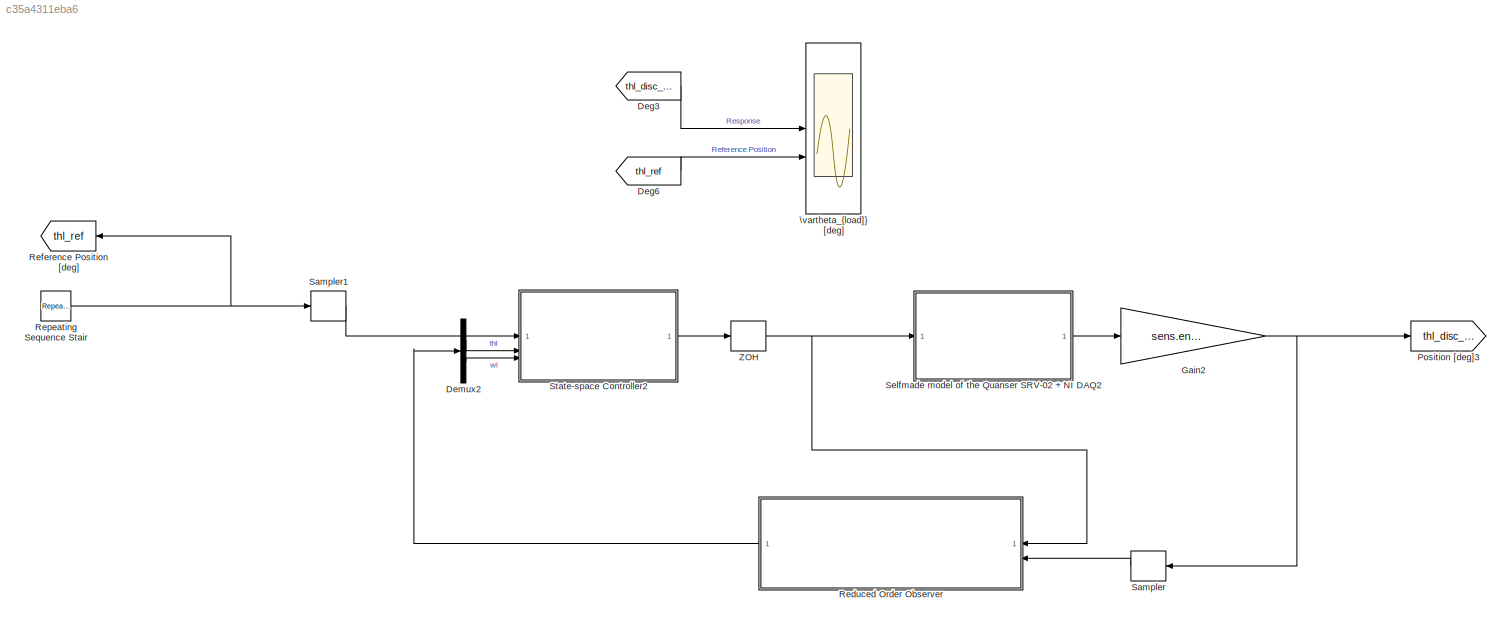
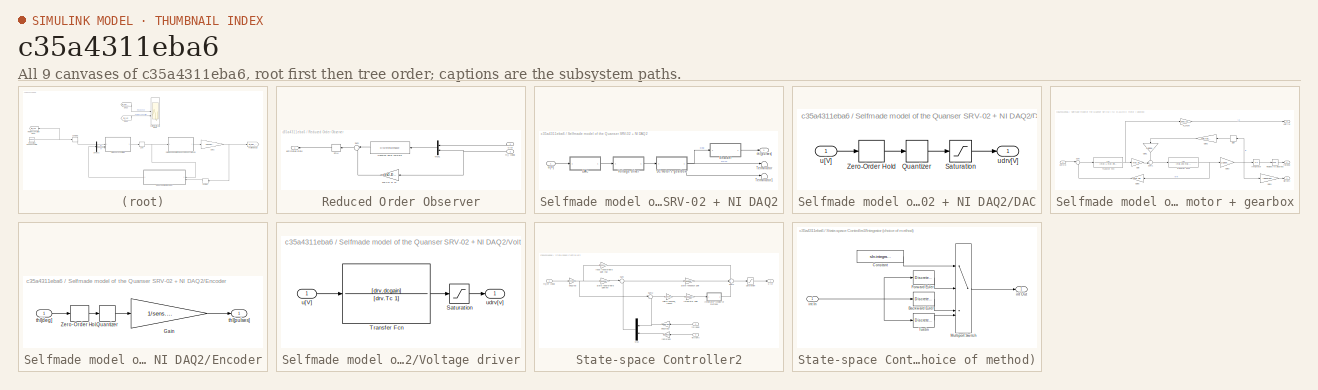
[diagram: thumbnail index - all 9 canvases of the model, root first then tree order]
MODEL slx_c35a4311eba6
KIND model
CONFIG AbsTol = auto
CONFIG EnableMultiTasking = off
CONFIG FixedStep = sIn.step_size
CONFIG MaxStep = auto
CONFIG MinStep = auto
CONFIG RelTol = auto
CONFIG SampleTimeConstraint = Unconstrained
CONFIG SolverName = FixedStepAuto
CONFIG StartTime = 0.0
CONFIG StopTime = sIn.simulation_time
BLOCK [From] Deg3
  GotoTag = thl_disc_rob
BLOCK [From] Deg6
  GotoTag = thl_ref
BLOCK [Demux] Demux2
  Outputs = 2
BLOCK [Gain] Gain2
  Gain = sens.enc.pulse2deg
BLOCK [Goto] Position [deg]3
  GotoTag = thl_disc_rob
BLOCK [SubSystem] Reduced Order Observer
BLOCK [Gain] Reduced Order Observer/2nd Col of J0
  Gain = obsD.J0(:,2)
BLOCK [Mux] Reduced Order Observer/Mux1
  DisplayOption = bar
  Inputs = 2
BLOCK [DiscreteStateSpace] Reduced Order Observer/Observer Euler Forward
  A = obsD.Phi0
  B = obsD.Gamma0
  C = obsD.H0
  D = [obsD.J0(:,1), zeros(2,1)]
  SampleTime = sIn.Ts
BLOCK [Sum] Reduced Order Observer/Sum
  Inputs = |++
BLOCK [ZeroOrderHold] Reduced Order Observer/ZOH
  SampleTime = sIn.Ts
BLOCK [Outport] Reduced Order Observer/estimated state
BLOCK [Inport] Reduced Order Observer/th_l [deg]
  Port = 2
BLOCK [Inport] Reduced Order Observer/u [V]
BLOCK [Goto] Reference Position [deg]
  GotoTag = thl_ref
  NameLocation = top
BLOCK [Reference] Repeating Sequence Stair  REF=simulink/Sources/Repeating
Sequence
Stair
  SourceBlock = simulink/Sources/Repeating\nSequence\nStair
  SourceType = Repeating Sequence Stair
BLOCK [ZeroOrderHold] Sampler
  SampleTime = sIn.Ts
BLOCK [ZeroOrderHold] Sampler1
  SampleTime = sIn.Ts
BLOCK [SubSystem] Selfmade model of the Quanser SRV-02 + NI DAQ2
BLOCK [SubSystem] Selfmade model of the Quanser SRV-02 + NI DAQ2/DAC
BLOCK [Quantizer] Selfmade model of the Quanser SRV-02 + NI DAQ2/DAC/Quantizer
  QuantizationInterval = daq.dac.q
BLOCK [Saturate] Selfmade model of the Quanser SRV-02 + NI DAQ2/DAC/Saturation
  LowerLimit = -10
  UpperLimit = 10
BLOCK [ZeroOrderHold] Selfmade model of the Quanser SRV-02 + NI DAQ2/DAC/Zero-Order Hold
  SampleTime = 1e-3
BLOCK [Inport] Selfmade model of the Quanser SRV-02 + NI DAQ2/DAC/u[V]
BLOCK [Outport] Selfmade model of the Quanser SRV-02 + NI DAQ2/DAC/udrv[V]
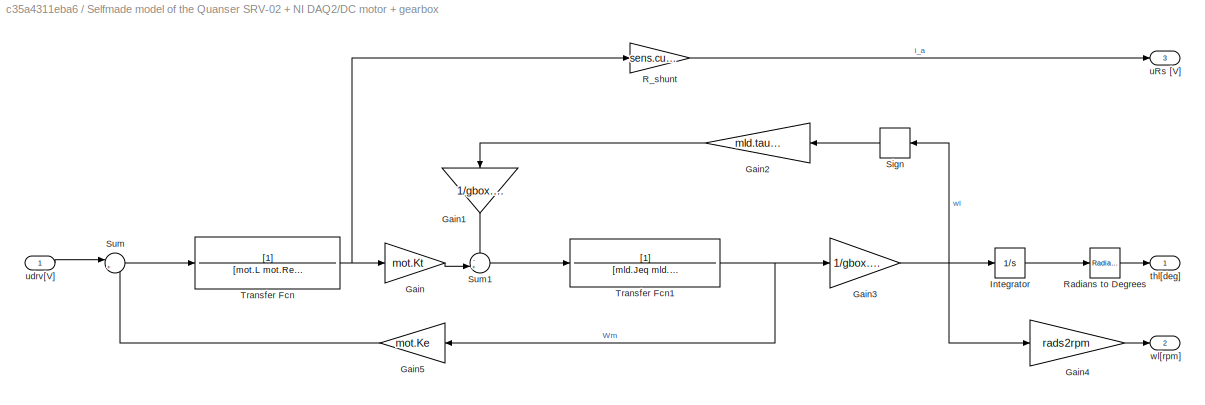
BLOCK [SubSystem] Selfmade model of the Quanser SRV-02 + NI DAQ2/DC motor + gearbox
BLOCK [Gain] Selfmade model of the Quanser SRV-02 + NI DAQ2/DC motor + gearbox/Gain
  Gain = mot.Kt
BLOCK [Gain] Selfmade model of the Quanser SRV-02 + NI DAQ2/DC motor + gearbox/Gain1
  Gain = 1/gbox.N1
  NameLocation = left
BLOCK [Gain] Selfmade model of the Quanser SRV-02 + NI DAQ2/DC motor + gearbox/Gain2
  Gain = mld.tausf
  NameLocation = top
BLOCK [Gain] Selfmade model of the Quanser SRV-02 + NI DAQ2/DC motor + gearbox/Gain3
  Gain = 1/gbox.N1
BLOCK [Gain] Selfmade model of the Quanser SRV-02 + NI DAQ2/DC motor + gearbox/Gain4
  Gain = rads2rpm
BLOCK [Gain] Selfmade model of the Quanser SRV-02 + NI DAQ2/DC motor + gearbox/Gain5
  Gain = mot.Ke
  NameLocation = top
BLOCK [Integrator] Selfmade model of the Quanser SRV-02 + NI DAQ2/DC motor + gearbox/Integrator
BLOCK [Gain] Selfmade model of the Quanser SRV-02 + NI DAQ2/DC motor + gearbox/R_shunt
  Gain = sens.curr.Rs
BLOCK [Reference] Selfmade model of the Quanser SRV-02 + NI DAQ2/DC motor + gearbox/Radians to Degrees  REF=simulink_extras/Transformations/Radians
to Degrees
  SourceBlock = simulink_extras/Transformations/Radians\nto Degrees
  SourceType = RadiansToDegrees
BLOCK [Signum] Selfmade model of the Quanser SRV-02 + NI DAQ2/DC motor + gearbox/Sign
  NameLocation = top
  ZeroCross = off
BLOCK [Sum] Selfmade model of the Quanser SRV-02 + NI DAQ2/DC motor + gearbox/Sum
  Inputs = |+-
BLOCK [Sum] Selfmade model of the Quanser SRV-02 + NI DAQ2/DC motor + gearbox/Sum1
  Inputs = -+|
BLOCK [TransferFcn] Selfmade model of the Quanser SRV-02 + NI DAQ2/DC motor + gearbox/Transfer Fcn
  Denominator = [mot.L mot.Req]
BLOCK [TransferFcn] Selfmade model of the Quanser SRV-02 + NI DAQ2/DC motor + gearbox/Transfer Fcn1
  Denominator = [mld.Jeq mld.Beq]
BLOCK [Outport] Selfmade model of the Quanser SRV-02 + NI DAQ2/DC motor + gearbox/thl[deg]
BLOCK [Outport] Selfmade model of the Quanser SRV-02 + NI DAQ2/DC motor + gearbox/uRs [V]
  Port = 3
BLOCK [Inport] Selfmade model of the Quanser SRV-02 + NI DAQ2/DC motor + gearbox/udrv[V]
BLOCK [Outport] Selfmade model of the Quanser SRV-02 + NI DAQ2/DC motor + gearbox/wl[rpm]
  Port = 2
BLOCK [SubSystem] Selfmade model of the Quanser SRV-02 + NI DAQ2/Encoder
  NameLocation = top
BLOCK [Gain] Selfmade model of the Quanser SRV-02 + NI DAQ2/Encoder/Gain
  Gain = 1/sens.enc.pulse2deg
BLOCK [Quantizer] Selfmade model of the Quanser SRV-02 + NI DAQ2/Encoder/Quantizer
  QuantizationInterval = sens.enc.pulse2deg
BLOCK [ZeroOrderHold] Selfmade model of the Quanser SRV-02 + NI DAQ2/Encoder/Zero-Order Hold
  SampleTime = 1e-3
BLOCK [Inport] Selfmade model of the Quanser SRV-02 + NI DAQ2/Encoder/thl[deg]
BLOCK [Outport] Selfmade model of the Quanser SRV-02 + NI DAQ2/Encoder/thl[pulses]
BLOCK [Terminator] Selfmade model of the Quanser SRV-02 + NI DAQ2/Terminator
BLOCK [Terminator] Selfmade model of the Quanser SRV-02 + NI DAQ2/Terminator1
BLOCK [SubSystem] Selfmade model of the Quanser SRV-02 + NI DAQ2/Voltage driver
BLOCK [Saturate] Selfmade model of the Quanser SRV-02 + NI DAQ2/Voltage driver/Saturation
  LowerLimit = -12
  UpperLimit = 12
BLOCK [TransferFcn] Selfmade model of the Quanser SRV-02 + NI DAQ2/Voltage driver/Transfer Fcn
  Denominator = [drv.Tc 1]
  Numerator = [drv.dcgain]
BLOCK [Inport] Selfmade model of the Quanser SRV-02 + NI DAQ2/Voltage driver/u[V]
BLOCK [Outport] Selfmade model of the Quanser SRV-02 + NI DAQ2/Voltage driver/udrv[v]
BLOCK [Outport] Selfmade model of the Quanser SRV-02 + NI DAQ2/thl[pulses]
BLOCK [Inport] Selfmade model of the Quanser SRV-02 + NI DAQ2/u[V]
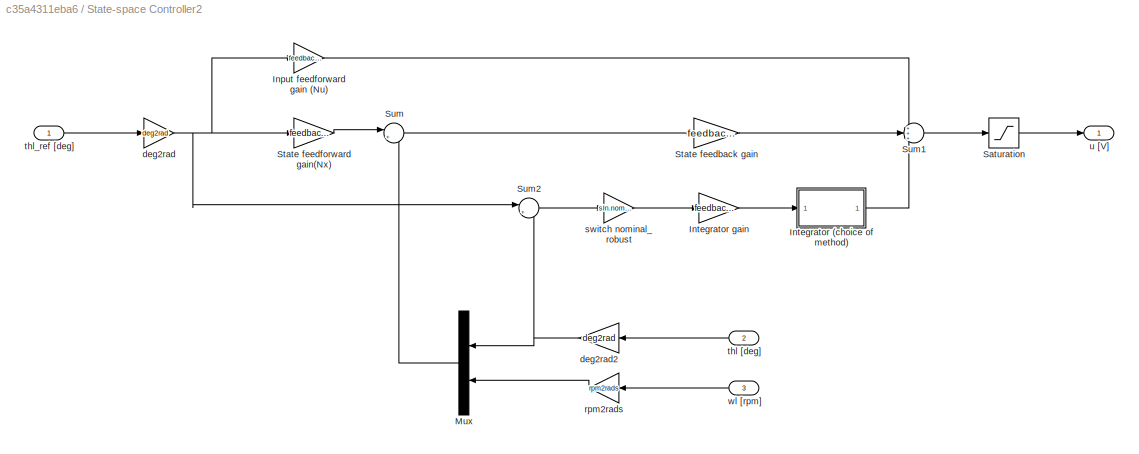
BLOCK [SubSystem] State-space Controller2
BLOCK [Gain] State-space Controller2/Input feedforward gain (Nu)
  Gain = feedback.Nu
BLOCK [SubSystem] State-space Controller2/Integrator (choice of method)
BLOCK [DiscreteIntegrator] State-space Controller2/Integrator (choice of method)/Backward Euler
  ICPrevOutput = DiscIntNeverNeededParam
  ICPrevScaledInput = DiscIntNeverNeededParam
  InitialConditionSetting = Auto
  IntegratorMethod = Integration: Backward Euler
  SampleTime = sIn.Ts
BLOCK [Constant] State-space Controller2/Integrator (choice of method)/Constant
  Value = sIn.integrationMethod
BLOCK [DiscreteIntegrator] State-space Controller2/Integrator (choice of method)/Forward Euler
  ICPrevOutput = DiscIntNeverNeededParam
  ICPrevScaledInput = DiscIntNeverNeededParam
  InitialConditionSetting = Auto
  SampleTime = sIn.Ts
BLOCK [MultiPortSwitch] State-space Controller2/Integrator (choice of method)/Multiport Switch
  InputSameDT = off
  SaturateOnIntegerOverflow = off
BLOCK [DiscreteIntegrator] State-space Controller2/Integrator (choice of method)/Tustin
  ICPrevOutput = DiscIntNeverNeededParam
  ICPrevScaledInput = DiscIntNeverNeededParam
  InitialConditionSetting = Auto
  IntegratorMethod = Integration: Trapezoidal
  SampleTime = sIn.Ts
BLOCK [Inport] State-space Controller2/Integrator (choice of method)/int In
BLOCK [Outport] State-space Controller2/Integrator (choice of method)/int Out
BLOCK [Gain] State-space Controller2/Integrator gain
  Gain = feedback.robustKi
BLOCK [Mux] State-space Controller2/Mux
  DisplayOption = bar
  Inputs = 2
  NameLocation = top
BLOCK [Saturate] State-space Controller2/Saturation
  LowerLimit = -10
  UpperLimit = 10
BLOCK [Gain] State-space Controller2/State feedback gain
  Gain = feedback.K
  Multiplication = Matrix(K*u)
BLOCK [Gain] State-space Controller2/State feedforward gain(Nx)
  Gain = feedback.Nx
BLOCK [Sum] State-space Controller2/Sum
  Inputs = |+-
BLOCK [Sum] State-space Controller2/Sum1
  Inputs = +++
BLOCK [Sum] State-space Controller2/Sum2
  Inputs = |+-
BLOCK [Gain] State-space Controller2/deg2rad
  Gain = deg2rad
BLOCK [Gain] State-space Controller2/deg2rad2
  Gain = deg2rad
  NameLocation = top
BLOCK [Gain] State-space Controller2/rpm2rads
  Gain = rpm2rads
  NameLocation = top
BLOCK [Gain] State-space Controller2/switch nominal_robust
  Gain = sIn.nominal_robust
BLOCK [Inport] State-space Controller2/thl [deg]
  NameLocation = top
  Port = 2
BLOCK [Inport] State-space Controller2/thl_ref [deg]
BLOCK [Outport] State-space Controller2/u [V]
BLOCK [Inport] State-space Controller2/wl [rpm]
  NameLocation = top
  Port = 3
BLOCK [ZeroOrderHold] ZOH
  SampleTime = sIn.Ts
BLOCK [Scope] \vartheta_{load]} [deg]
  Floating = off
  NumInputPorts = 2
  ScopeSpecificationString = Simulink.scopes.TimeScopeBlockCfg('CurrentConfiguration', extmgr.ConfigurationSet(extmgr.Configuration('Core','General UI',true),extmgr.Configuration('Core','Source UI',true),extmgr.Configuration('Sources','WiredSimulink',true,'DataLoggingVariableName','ScopeData1'),extmgr.Configuration('Visuals','Time Domain',true,'SerializedDisplays',{struct('MinYLimReal','-51.3225','MaxYLimReal','202.7025','YLa...<+1693ch>
LINE Deg3:1 -> \vartheta_{load]} [deg]:1
LINE Deg6:1 -> \vartheta_{load]} [deg]:2
LINE Demux2:1 -> State-space Controller2:2
LINE Demux2:2 -> State-space Controller2:3
NET Gain2:1 -> Position [deg]3:1, Sampler:1
LINE Reduced Order Observer/2nd Col of J0:1 -> Reduced Order Observer/Sum:2
LINE Reduced Order Observer/Mux1:1 -> Reduced Order Observer/Observer Euler Forward:1
LINE Reduced Order Observer/Observer Euler Forward:1 -> Reduced Order Observer/Sum:1
LINE Reduced Order Observer/Sum:1 -> Reduced Order Observer/ZOH:1
LINE Reduced Order Observer/ZOH:1 -> Reduced Order Observer/estimated state:1
NET Reduced Order Observer/th_l [deg]:1 -> Reduced Order Observer/2nd Col of J0:1, Reduced Order Observer/Mux1:2
LINE Reduced Order Observer/u [V]:1 -> Reduced Order Observer/Mux1:1
LINE Reduced Order Observer:1 -> Demux2:1
NET Repeating Sequence Stair:1 -> Reference Position [deg]:1, Sampler1:1
LINE Sampler1:1 -> State-space Controller2:1
LINE Sampler:1 -> Reduced Order Observer:2
LINE Selfmade model of the Quanser SRV-02 + NI DAQ2/DAC/Quantizer:1 -> Selfmade model of the Quanser SRV-02 + NI DAQ2/DAC/Saturation:1
LINE Selfmade model of the Quanser SRV-02 + NI DAQ2/DAC/Saturation:1 -> Selfmade model of the Quanser SRV-02 + NI DAQ2/DAC/udrv[V]:1
LINE Selfmade model of the Quanser SRV-02 + NI DAQ2/DAC/Zero-Order Hold:1 -> Selfmade model of the Quanser SRV-02 + NI DAQ2/DAC/Quantizer:1
LINE Selfmade model of the Quanser SRV-02 + NI DAQ2/DAC/u[V]:1 -> Selfmade model of the Quanser SRV-02 + NI DAQ2/DAC/Zero-Order Hold:1
LINE Selfmade model of the Quanser SRV-02 + NI DAQ2/DAC:1 -> Selfmade model of the Quanser SRV-02 + NI DAQ2/Voltage driver:1
LINE Selfmade model of the Quanser SRV-02 + NI DAQ2/DC motor + gearbox/Gain1:1 -> Selfmade model of the Quanser SRV-02 + NI DAQ2/DC motor + gearbox/Sum1:1
LINE Selfmade model of the Quanser SRV-02 + NI DAQ2/DC motor + gearbox/Gain2:1 -> Selfmade model of the Quanser SRV-02 + NI DAQ2/DC motor + gearbox/Gain1:1
NET Selfmade model of the Quanser SRV-02 + NI DAQ2/DC motor + gearbox/Gain3:1 -> Selfmade model of the Quanser SRV-02 + NI DAQ2/DC motor + gearbox/Gain4:1, Selfmade model of the Quanser SRV-02 + NI DAQ2/DC motor + gearbox/Integrator:1, Selfmade model of the Quanser SRV-02 + NI DAQ2/DC motor + gearbox/Sign:1
LINE Selfmade model of the Quanser SRV-02 + NI DAQ2/DC motor + gearbox/Gain4:1 -> Selfmade model of the Quanser SRV-02 + NI DAQ2/DC motor + gearbox/wl[rpm]:1
LINE Selfmade model of the Quanser SRV-02 + NI DAQ2/DC motor + gearbox/Gain5:1 -> Selfmade model of the Quanser SRV-02 + NI DAQ2/DC motor + gearbox/Sum:2
LINE Selfmade model of the Quanser SRV-02 + NI DAQ2/DC motor + gearbox/Gain:1 -> Selfmade model of the Quanser SRV-02 + NI DAQ2/DC motor + gearbox/Sum1:2
LINE Selfmade model of the Quanser SRV-02 + NI DAQ2/DC motor + gearbox/Integrator:1 -> Selfmade model of the Quanser SRV-02 + NI DAQ2/DC motor + gearbox/Radians to Degrees:1
LINE Selfmade model of the Quanser SRV-02 + NI DAQ2/DC motor + gearbox/R_shunt:1 -> Selfmade model of the Quanser SRV-02 + NI DAQ2/DC motor + gearbox/uRs [V]:1
LINE Selfmade model of the Quanser SRV-02 + NI DAQ2/DC motor + gearbox/Radians to Degrees:1 -> Selfmade model of the Quanser SRV-02 + NI DAQ2/DC motor + gearbox/thl[deg]:1
LINE Selfmade model of the Quanser SRV-02 + NI DAQ2/DC motor + gearbox/Sign:1 -> Selfmade model of the Quanser SRV-02 + NI DAQ2/DC motor + gearbox/Gain2:1
LINE Selfmade model of the Quanser SRV-02 + NI DAQ2/DC motor + gearbox/Sum1:1 -> Selfmade model of the Quanser SRV-02 + NI DAQ2/DC motor + gearbox/Transfer Fcn1:1
LINE Selfmade model of the Quanser SRV-02 + NI DAQ2/DC motor + gearbox/Sum:1 -> Selfmade model of the Quanser SRV-02 + NI DAQ2/DC motor + gearbox/Transfer Fcn:1
NET Selfmade model of the Quanser SRV-02 + NI DAQ2/DC motor + gearbox/Transfer Fcn1:1 -> Selfmade model of the Quanser SRV-02 + NI DAQ2/DC motor + gearbox/Gain3:1, Selfmade model of the Quanser SRV-02 + NI DAQ2/DC motor + gearbox/Gain5:1
NET Selfmade model of the Quanser SRV-02 + NI DAQ2/DC motor + gearbox/Transfer Fcn:1 -> Selfmade model of the Quanser SRV-02 + NI DAQ2/DC motor + gearbox/Gain:1, Selfmade model of the Quanser SRV-02 + NI DAQ2/DC motor + gearbox/R_shunt:1
LINE Selfmade model of the Quanser SRV-02 + NI DAQ2/DC motor + gearbox/udrv[V]:1 -> Selfmade model of the Quanser SRV-02 + NI DAQ2/DC motor + gearbox/Sum:1
LINE Selfmade model of the Quanser SRV-02 + NI DAQ2/DC motor + gearbox:1 -> Selfmade model of the Quanser SRV-02 + NI DAQ2/Encoder:1
LINE Selfmade model of the Quanser SRV-02 + NI DAQ2/DC motor + gearbox:2 -> Selfmade model of the Quanser SRV-02 + NI DAQ2/Terminator:1
LINE Selfmade model of the Quanser SRV-02 + NI DAQ2/DC motor + gearbox:3 -> Selfmade model of the Quanser SRV-02 + NI DAQ2/Terminator1:1
LINE Selfmade model of the Quanser SRV-02 + NI DAQ2/Encoder/Gain:1 -> Selfmade model of the Quanser SRV-02 + NI DAQ2/Encoder/thl[pulses]:1
LINE Selfmade model of the Quanser SRV-02 + NI DAQ2/Encoder/Quantizer:1 -> Selfmade model of the Quanser SRV-02 + NI DAQ2/Encoder/Gain:1
LINE Selfmade model of the Quanser SRV-02 + NI DAQ2/Encoder/Zero-Order Hold:1 -> Selfmade model of the Quanser SRV-02 + NI DAQ2/Encoder/Quantizer:1
LINE Selfmade model of the Quanser SRV-02 + NI DAQ2/Encoder/thl[deg]:1 -> Selfmade model of the Quanser SRV-02 + NI DAQ2/Encoder/Zero-Order Hold:1
LINE Selfmade model of the Quanser SRV-02 + NI DAQ2/Encoder:1 -> Selfmade model of the Quanser SRV-02 + NI DAQ2/thl[pulses]:1
LINE Selfmade model of the Quanser SRV-02 + NI DAQ2/Voltage driver/Saturation:1 -> Selfmade model of the Quanser SRV-02 + NI DAQ2/Voltage driver/udrv[v]:1
LINE Selfmade model of the Quanser SRV-02 + NI DAQ2/Voltage driver/Transfer Fcn:1 -> Selfmade model of the Quanser SRV-02 + NI DAQ2/Voltage driver/Saturation:1
LINE Selfmade model of the Quanser SRV-02 + NI DAQ2/Voltage driver/u[V]:1 -> Selfmade model of the Quanser SRV-02 + NI DAQ2/Voltage driver/Transfer Fcn:1
LINE Selfmade model of the Quanser SRV-02 + NI DAQ2/Voltage driver:1 -> Selfmade model of the Quanser SRV-02 + NI DAQ2/DC motor + gearbox:1
LINE Selfmade model of the Quanser SRV-02 + NI DAQ2/u[V]:1 -> Selfmade model of the Quanser SRV-02 + NI DAQ2/DAC:1
LINE Selfmade model of the Quanser SRV-02 + NI DAQ2:1 -> Gain2:1
LINE State-space Controller2/Input feedforward gain (Nu):1 -> State-space Controller2/Sum1:1
LINE State-space Controller2/Integrator (choice of method)/Backward Euler:1 -> State-space Controller2/Integrator (choice of method)/Multiport Switch:3
LINE State-space Controller2/Integrator (choice of method)/Constant:1 -> State-space Controller2/Integrator (choice of method)/Multiport Switch:1
LINE State-space Controller2/Integrator (choice of method)/Forward Euler:1 -> State-space Controller2/Integrator (choice of method)/Multiport Switch:2
LINE State-space Controller2/Integrator (choice of method)/Multiport Switch:1 -> State-space Controller2/Integrator (choice of method)/int Out:1
LINE State-space Controller2/Integrator (choice of method)/Tustin:1 -> State-space Controller2/Integrator (choice of method)/Multiport Switch:4
NET State-space Controller2/Integrator (choice of method)/int In:1 -> State-space Controller2/Integrator (choice of method)/Backward Euler:1, State-space Controller2/Integrator (choice of method)/Forward Euler:1, State-space Controller2/Integrator (choice of method)/Tustin:1
LINE State-space Controller2/Integrator (choice of method):1 -> State-space Controller2/Sum1:3
LINE State-space Controller2/Integrator gain:1 -> State-space Controller2/Integrator (choice of method):1
LINE State-space Controller2/Mux:1 -> State-space Controller2/Sum:2
LINE State-space Controller2/Saturation:1 -> State-space Controller2/u [V]:1
LINE State-space Controller2/State feedback gain:1 -> State-space Controller2/Sum1:2
LINE State-space Controller2/State feedforward gain(Nx):1 -> State-space Controller2/Sum:1
LINE State-space Controller2/Sum1:1 -> State-space Controller2/Saturation:1
LINE State-space Controller2/Sum2:1 -> State-space Controller2/switch nominal_robust:1
LINE State-space Controller2/Sum:1 -> State-space Controller2/State feedback gain:1
NET State-space Controller2/deg2rad2:1 -> State-space Controller2/Mux:1, State-space Controller2/Sum2:2
NET State-space Controller2/deg2rad:1 -> State-space Controller2/Input feedforward gain (Nu):1, State-space Controller2/State feedforward gain(Nx):1, State-space Controller2/Sum2:1
LINE State-space Controller2/rpm2rads:1 -> State-space Controller2/Mux:2
LINE State-space Controller2/switch nominal_robust:1 -> State-space Controller2/Integrator gain:1
LINE State-space Controller2/thl [deg]:1 -> State-space Controller2/deg2rad2:1
LINE State-space Controller2/thl_ref [deg]:1 -> State-space Controller2/deg2rad:1
LINE State-space Controller2/wl [rpm]:1 -> State-space Controller2/rpm2rads:1
LINE State-space Controller2:1 -> ZOH:1
NET ZOH:1 -> Reduced Order Observer:1, Selfmade model of the Quanser SRV-02 + NI DAQ2:1
note: NET lines group one-source signal fan-out (src -> all destinations, sorted); 1:1 wires keep LINE
